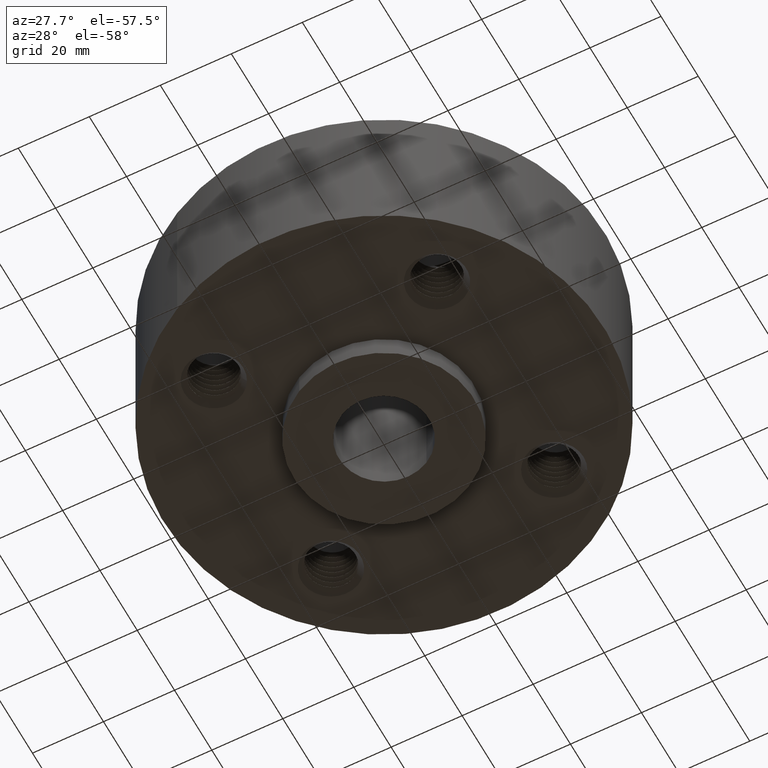
[diagram: clean part render]
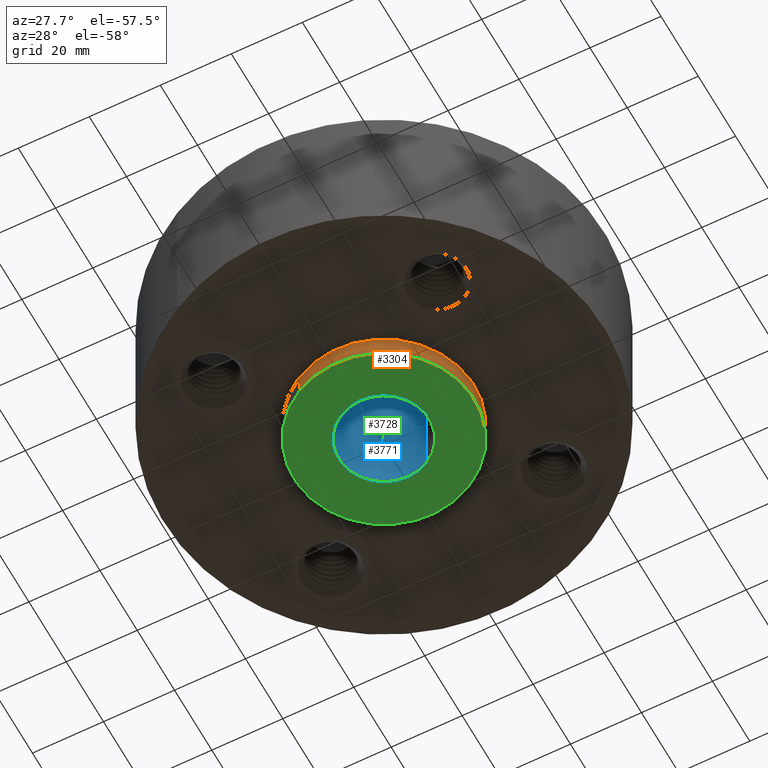
[diagram: same view with three faces highlighted in distinct colors, each labeled with its STEP entity id]
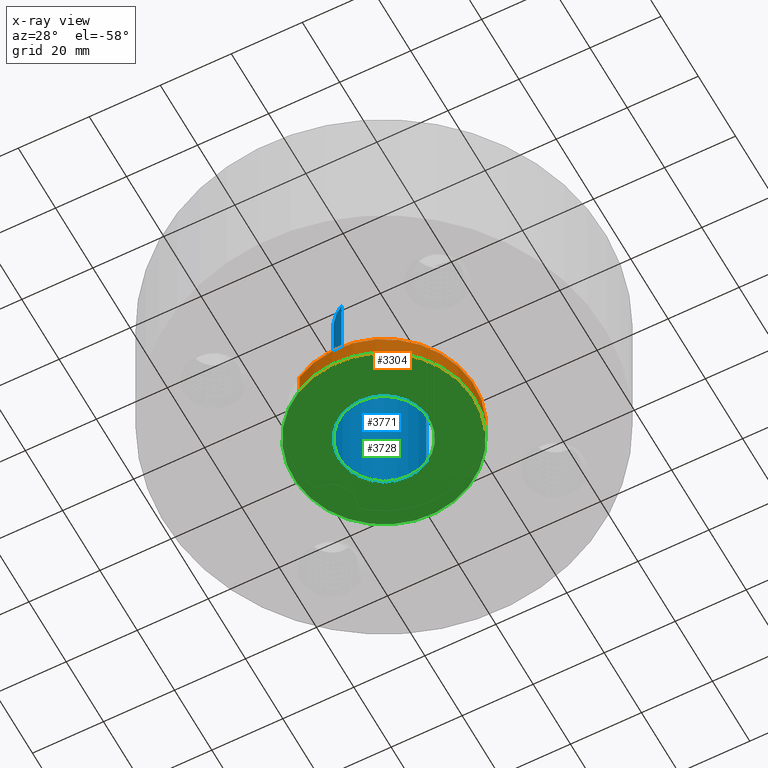
[diagram: x-ray of the same camera — body ghosted, the three highlighted faces saturated]
A machine part, auxiliary view with three faces highlighted in distinct colors.
The next image is the same camera in x-ray (body ghosted, the three faces saturated) — at least one of them is partly hidden behind the body in this view.
Their STEP definitions:

[orange] entity #3304 — the highlighted cylindrical surface (partial cylindrical patch) has radius 25.4 mm, axis along (0, 0, -1).
#3160=AXIS2_PLACEMENT_3D('Circle Axis2P3D',#3158,#3159,$) ;
#3277=AXIS2_PLACEMENT_3D('Cylinder Axis2P3D',#3274,#3275,#3276) ;
#3281=AXIS2_PLACEMENT_3D('Circle Axis2P3D',#3279,#3280,$) ;
#3158=CARTESIAN_POINT('Axis2P3D Location',(0.,0.,0.)) ;
#3162=CARTESIAN_POINT('Vertex',(0.479425538606,0.877582561894,-2.7414640986E-014)) ;
#3164=CARTESIAN_POINT('Vertex',(-0.479425538606,-0.877582561894,-2.7414640986E-014)) ;
#3274=CARTESIAN_POINT('Axis2P3D Location',(0.,0.,0.750000000003)) ;
#3279=CARTESIAN_POINT('Axis2P3D Location',(0.,0.,-0.250000000001)) ;
#3283=CARTESIAN_POINT('Vertex',(0.479425538606,0.877582561894,-0.250000000001)) ;
#3285=CARTESIAN_POINT('Vertex',(-0.479425538606,-0.877582561894,-0.250000000001)) ;
#3288=CARTESIAN_POINT('Line Origine',(0.479425538606,0.877582561894,-0.125000000001)) ;
#3293=CARTESIAN_POINT('Line Origine',(-0.479425538606,-0.877582561894,-0.125000000001)) ;
#3159=DIRECTION('Axis2P3D Direction',(0.,0.,-0.0393700787402)) ;
#3275=DIRECTION('Axis2P3D Direction',(0.,0.,-0.0393700787402)) ;
#3276=DIRECTION('Axis2P3D XDirection',(-0.0188750212049,-0.0345504945626,0.)) ;
#3280=DIRECTION('Axis2P3D Direction',(0.,0.,-0.0393700787402)) ;
#3289=DIRECTION('Vector Direction',(0.,0.,-0.0393700787402)) ;
#3294=DIRECTION('Vector Direction',(0.,0.,-0.0393700787402)) ;
#3290=VECTOR('Line Direction',#3289,0.0393700787402) ;
#3295=VECTOR('Line Direction',#3294,0.0393700787402) ;
#3299=ORIENTED_EDGE('',*,*,#3287,.F.) ;
#3300=ORIENTED_EDGE('',*,*,#3292,.T.) ;
#3301=ORIENTED_EDGE('',*,*,#3166,.T.) ;
#3302=ORIENTED_EDGE('',*,*,#3297,.F.) ;
#3304=ADVANCED_FACE('PartBody',(#3303),#3278,.T.) ;
#3161=CIRCLE('generated circle',#3160,1.) ;
#3282=CIRCLE('generated circle',#3281,1.) ;
#3278=CYLINDRICAL_SURFACE('generated cylinder',#3277,1.) ;
#3166=EDGE_CURVE('',#3163,#3165,#3161,.T.) ;
#3287=EDGE_CURVE('',#3284,#3286,#3282,.T.) ;
#3292=EDGE_CURVE('',#3284,#3163,#3291,.F.) ;
#3297=EDGE_CURVE('',#3286,#3165,#3296,.F.) ;
#3298=EDGE_LOOP('',(#3299,#3300,#3301,#3302)) ;
#3303=FACE_OUTER_BOUND('',#3298,.T.) ;
#3291=LINE('Line',#3288,#3290) ;
#3296=LINE('Line',#3293,#3295) ;
#3163=VERTEX_POINT('',#3162) ;
#3165=VERTEX_POINT('',#3164) ;
#3284=VERTEX_POINT('',#3283) ;
#3286=VERTEX_POINT('',#3285) ;

[blue] entity #3771 — the highlighted cylindrical surface (partial cylindrical patch) has radius 12.7 mm, axis along (0, 0, -1).
#3721=AXIS2_PLACEMENT_3D('Circle Axis2P3D',#3719,#3720,$) ;
#3732=AXIS2_PLACEMENT_3D('Cylinder Axis2P3D',#3729,#3730,#3731) ;
#3762=AXIS2_PLACEMENT_3D('Circle Axis2P3D',#3760,#3761,$) ;
#3714=CARTESIAN_POINT('Vertex',(0.239712769303,0.438791280947,-0.250000000001)) ;
#3716=CARTESIAN_POINT('Vertex',(-0.239712769303,-0.438791280947,-0.250000000001)) ;
#3719=CARTESIAN_POINT('Axis2P3D Location',(0.,0.,-0.250000000001)) ;
#3729=CARTESIAN_POINT('Axis2P3D Location',(0.,0.,0.750000000003)) ;
#3738=CARTESIAN_POINT('Vertex',(0.239712769303,0.438791280947,1.75000000001)) ;
#3740=CARTESIAN_POINT('Vertex',(-0.239712769303,-0.438791280947,1.75000000001)) ;
#3743=CARTESIAN_POINT('Line Origine',(0.239712769303,0.438791280947,0.750000000003)) ;
#3748=CARTESIAN_POINT('Line Origine',(-0.239712769303,-0.438791280947,0.750000000003)) ;
#3760=CARTESIAN_POINT('Axis2P3D Location',(0.,0.,1.75000000001)) ;
#3720=DIRECTION('Axis2P3D Direction',(0.,0.,-0.0393700787402)) ;
#3730=DIRECTION('Axis2P3D Direction',(0.,0.,-0.0393700787402)) ;
#3731=DIRECTION('Axis2P3D XDirection',(-0.0188750212049,-0.0345504945626,0.)) ;
#3744=DIRECTION('Vector Direction',(0.,0.,-0.0393700787402)) ;
#3749=DIRECTION('Vector Direction',(0.,0.,-0.0393700787402)) ;
#3761=DIRECTION('Axis2P3D Direction',(0.,0.,-0.0393700787402)) ;
#3745=VECTOR('Line Direction',#3744,0.0393700787402) ;
#3750=VECTOR('Line Direction',#3749,0.0393700787402) ;
#3766=ORIENTED_EDGE('',*,*,#3764,.F.) ;
#3767=ORIENTED_EDGE('',*,*,#3752,.T.) ;
#3768=ORIENTED_EDGE('',*,*,#3723,.T.) ;
#3769=ORIENTED_EDGE('',*,*,#3747,.F.) ;
#3771=ADVANCED_FACE('PartBody',(#3770),#3733,.F.) ;
#3722=CIRCLE('generated circle',#3721,0.500000000002) ;
#3763=CIRCLE('generated circle',#3762,0.500000000002) ;
#3733=CYLINDRICAL_SURFACE('generated cylinder',#3732,0.500000000002) ;
#3723=EDGE_CURVE('',#3717,#3715,#3722,.T.) ;
#3747=EDGE_CURVE('',#3739,#3715,#3746,.T.) ;
#3752=EDGE_CURVE('',#3741,#3717,#3751,.T.) ;
#3764=EDGE_CURVE('',#3741,#3739,#3763,.T.) ;
#3765=EDGE_LOOP('',(#3766,#3767,#3768,#3769)) ;
#3770=FACE_OUTER_BOUND('',#3765,.T.) ;
#3746=LINE('Line',#3743,#3745) ;
#3751=LINE('Line',#3748,#3750) ;
#3715=VERTEX_POINT('',#3714) ;
#3717=VERTEX_POINT('',#3716) ;
#3739=VERTEX_POINT('',#3738) ;
#3741=VERTEX_POINT('',#3740) ;

[green] entity #3728 — the highlighted planar face has unit normal (0, 0, -1).
#3281=AXIS2_PLACEMENT_3D('Circle Axis2P3D',#3279,#3280,$) ;
#3307=AXIS2_PLACEMENT_3D('Circle Axis2P3D',#3305,#3306,$) ;
#3704=AXIS2_PLACEMENT_3D('Plane Axis2P3D',#3701,#3702,#3703) ;
#3712=AXIS2_PLACEMENT_3D('Circle Axis2P3D',#3710,#3711,$) ;
#3721=AXIS2_PLACEMENT_3D('Circle Axis2P3D',#3719,#3720,$) ;
#3279=CARTESIAN_POINT('Axis2P3D Location',(0.,0.,-0.250000000001)) ;
#3283=CARTESIAN_POINT('Vertex',(0.479425538606,0.877582561894,-0.250000000001)) ;
#3285=CARTESIAN_POINT('Vertex',(-0.479425538606,-0.877582561894,-0.250000000001)) ;
#3305=CARTESIAN_POINT('Axis2P3D Location',(0.,0.,-0.250000000001)) ;
#3701=CARTESIAN_POINT('Axis2P3D Location',(0.,1.,-0.250000000001)) ;
#3710=CARTESIAN_POINT('Axis2P3D Location',(0.,0.,-0.250000000001)) ;
#3714=CARTESIAN_POINT('Vertex',(0.239712769303,0.438791280947,-0.250000000001)) ;
#3716=CARTESIAN_POINT('Vertex',(-0.239712769303,-0.438791280947,-0.250000000001)) ;
#3719=CARTESIAN_POINT('Axis2P3D Location',(0.,0.,-0.250000000001)) ;
#3280=DIRECTION('Axis2P3D Direction',(0.,0.,-0.0393700787402)) ;
#3306=DIRECTION('Axis2P3D Direction',(0.,0.,-0.0393700787402)) ;
#3702=DIRECTION('Axis2P3D Direction',(0.,0.,-0.0393700787402)) ;
#3703=DIRECTION('Axis2P3D XDirection',(0.0393700787402,0.,0.)) ;
#3711=DIRECTION('Axis2P3D Direction',(0.,0.,-0.0393700787402)) ;
#3720=DIRECTION('Axis2P3D Direction',(0.,0.,-0.0393700787402)) ;
#3707=ORIENTED_EDGE('',*,*,#3309,.T.) ;
#3708=ORIENTED_EDGE('',*,*,#3287,.T.) ;
#3725=ORIENTED_EDGE('',*,*,#3718,.F.) ;
#3726=ORIENTED_EDGE('',*,*,#3723,.F.) ;
#3727=FACE_BOUND('',#3724,.T.) ;
#3728=ADVANCED_FACE('PartBody',(#3709,#3727),#3705,.T.) ;
#3282=CIRCLE('generated circle',#3281,1.) ;
#3308=CIRCLE('generated circle',#3307,1.) ;
#3713=CIRCLE('generated circle',#3712,0.500000000002) ;
#3722=CIRCLE('generated circle',#3721,0.500000000002) ;
#3287=EDGE_CURVE('',#3284,#3286,#3282,.T.) ;
#3309=EDGE_CURVE('',#3286,#3284,#3308,.T.) ;
#3718=EDGE_CURVE('',#3715,#3717,#3713,.T.) ;
#3723=EDGE_CURVE('',#3717,#3715,#3722,.T.) ;
#3706=EDGE_LOOP('',(#3707,#3708)) ;
#3724=EDGE_LOOP('',(#3725,#3726)) ;
#3709=FACE_OUTER_BOUND('',#3706,.T.) ;
#3705=PLANE('',#3704) ;
#3284=VERTEX_POINT('',#3283) ;
#3286=VERTEX_POINT('',#3285) ;
#3715=VERTEX_POINT('',#3714) ;
#3717=VERTEX_POINT('',#3716) ;